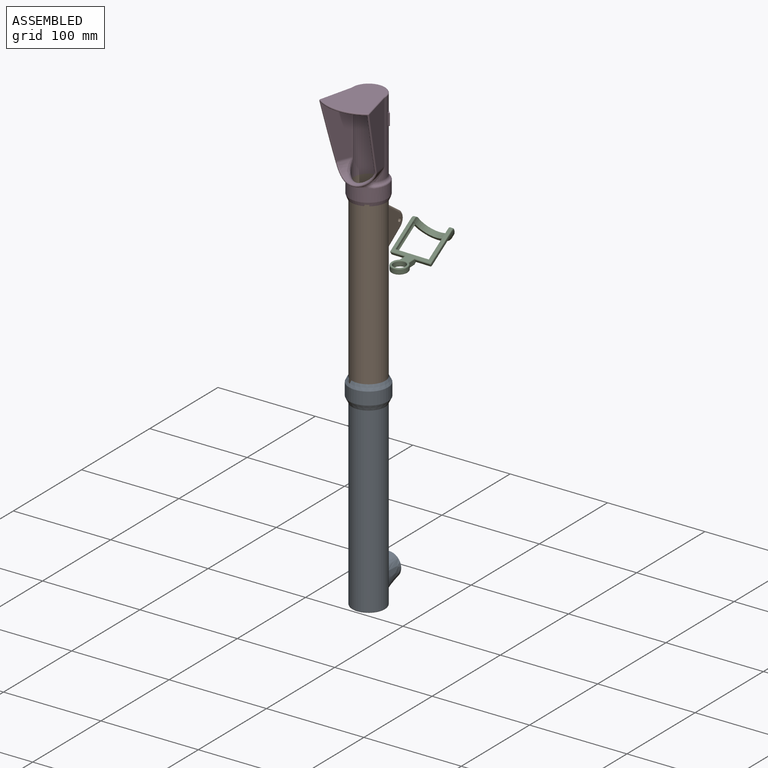
[diagram: assembled view]
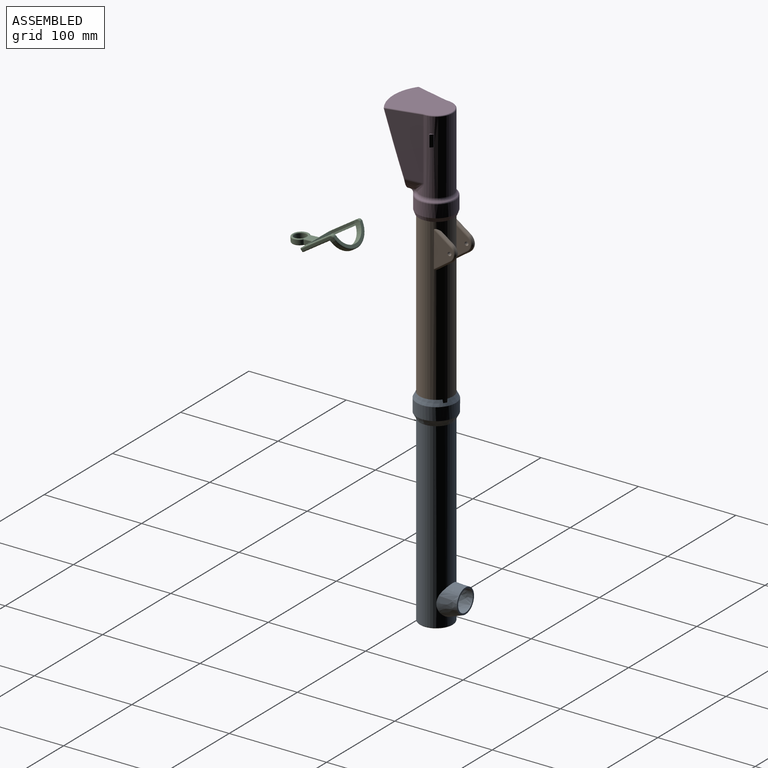
[diagram: assembled view, second angle]
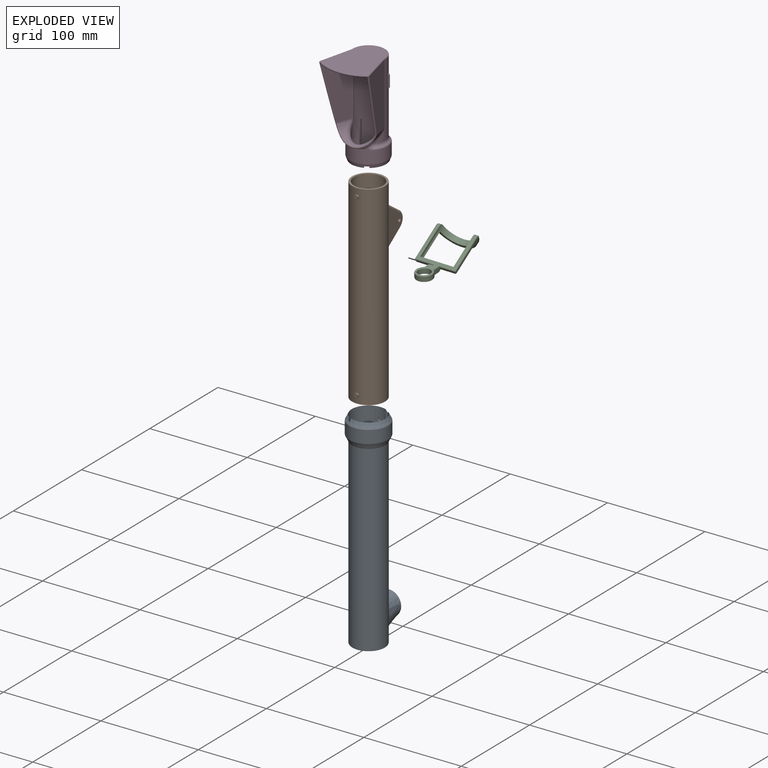
[diagram: exploded view]
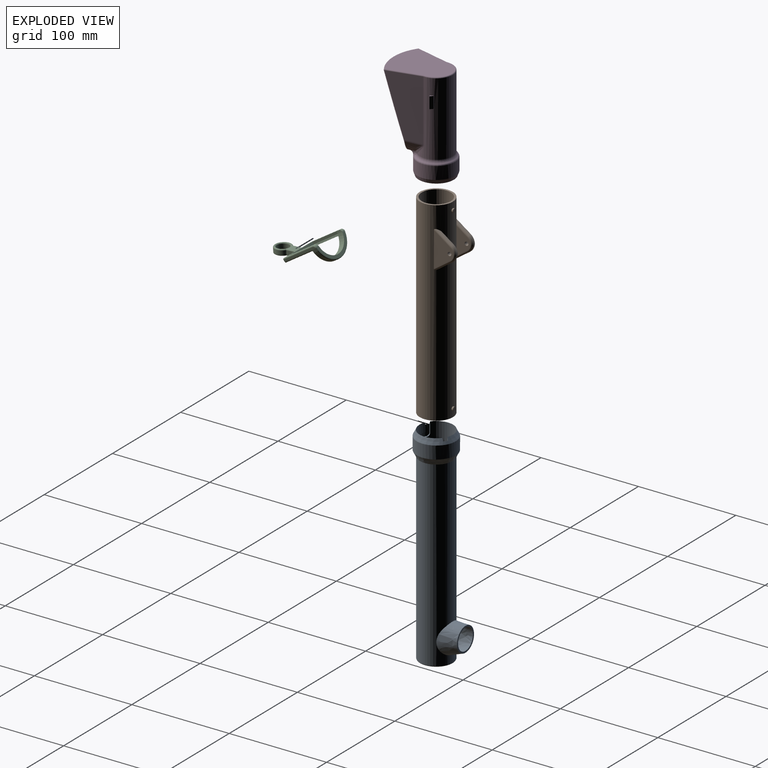
[diagram: exploded view, second angle]
ASSEMBLY  parts=4 mates=2
PART A: 40 faces, bbox 43.2x53.9x215.7 mm
  f0: cylinder r=17.25mm len=34.5mm, axis (0,0,-1), area 1921.5mm2, adj f2,f3,f5,f21,f22,f23,f27,f29
  f1: cylinder r=18.5mm len=7.23mm, axis (0,0,1), area 25.5mm2, adj f2,f21,f28,f32
  f2: plane 7.23x2.56mm, normal (0,0,-1), area 8.9mm2, adj f0,f1,f27,f32
  f3: plane 7.23x2.56mm, normal (0,0,-1), area 8.9mm2, adj f0,f4,f23,f29
  f4: cylinder r=18.5mm len=7.23mm, axis (0,0,1), area 25.5mm2, adj f3,f22,f25,f29
  f5: plane 34.5x34.5mm, normal (0,0,1), area 228mm2, adj f0,f17
  f6: cylinder r=17mm len=187mm, axis (0,0,-1), area 19322.3mm2, adj f8,f9,f10,f11,f37,f39
  f7: plane 32x32mm, normal (0,0,-1), area 650.3mm2, adj f18,f39
  f8: bspline ~30.75x29.36mm, area 493.4mm2, adj f6,f9,f11,f12
  f9: bspline ~30.51x20.88mm, area 330mm2, adj f6,f8,f10,f12
  f10: bspline ~30x29.27mm, area 469mm2, adj f6,f9,f11,f12
  f11: bspline ~30.52x22.39mm, area 329.5mm2, adj f6,f8,f10,f12
  f12: plane 25.53x25.5mm, normal (0,1,0), area 119.4mm2, adj f8,f9,f10,f11,f13,f14,f15,f16
  f13: offset ~33.95x32.43mm, area 380.3mm2, adj f12,f14,f16,f17
  f14: offset ~34.01x24.06mm, area 318.9mm2, adj f12,f13,f15,f17
  f15: offset ~33.8x32.67mm, area 365.5mm2, adj f12,f14,f16,f17
  f16: offset ~34.02x25.53mm, area 318.1mm2, adj f12,f13,f15,f17
  f17: cylinder r=15mm len=191mm, axis (0,0,-1), area 17587.7mm2, adj f5,f13,f14,f15,f16,f19
  f18: cylinder r=7mm len=14mm, axis (0,0,-1), area 88mm2, adj f7,f19
  f19: plane 30x30mm, normal (0,0,1), area 552.9mm2, adj f17,f18
  f20: cylinder r=20mm len=40mm, axis (0,0,1), area 1633.6mm2, adj f37,f38
  f21: plane 8.66x3.2mm, normal (0,0,1), area 11mm2, adj f0,f1,f27,f32,f33,f36
  f22: plane 8.66x3.2mm, normal (0,0,1), area 11mm2, adj f0,f4,f23,f29,f31,f35
  f23: cylinder r=2.25mm len=4.5mm, axis (0,-1,0), area 8.8mm2, adj f0,f3,f22,f24
  f24: plane 4.5x4.5mm, normal (0,1,0), area 15.9mm2, adj f23,f25
  f25: cylinder r=2.25mm len=4.5mm, axis (0,-1,0), area 0mm2, adj f4,f24
  f26: plane 4.5x4.5mm, normal (0,-1,0), area 15.9mm2, adj f27,f28
  f27: cylinder r=2.25mm len=4.5mm, axis (0,-1,0), area 8.8mm2, adj f0,f2,f21,f26
  f28: cylinder r=2.25mm len=4.5mm, axis (0,-1,0), area 0mm2, adj f1,f26
  f29: plane 13.76x1.22mm, normal (-0.87,0.5,0), area 11.6mm2, adj f0,f3,f4,f22,f31,f38
  f30: plane 10.76x1.22mm, normal (0.87,-0.5,0), area 13.1mm2, adj f0,f31,f35,f38
  f31: cylinder r=18.64mm len=10.98mm, axis (0,0,1), area 47.6mm2, adj f22,f29,f30,f35,f38
  f32: plane 13.76x1.22mm, normal (0.87,-0.5,0), area 11.6mm2, adj f0,f1,f2,f21,f33,f38
  f33: cylinder r=18.64mm len=10.98mm, axis (0,0,1), area 47.6mm2, adj f21,f32,f34,f36,f38
  f34: plane 10.76x1.22mm, normal (-0.87,0.5,0), area 13.1mm2, adj f0,f33,f36,f38
  f35: cylinder r=3mm len=3.36mm, axis (0.5,0.87,0), area 6.6mm2, adj f0,f22,f30,f31
  f36: cylinder r=3mm len=3.36mm, axis (0.5,0.87,0), area 6.6mm2, adj f0,f21,f33,f34
  f37: cone r=20mm half-angle=26.6deg, axis (0,0,1), area 779.8mm2, adj f6,f20
  f38: cone r=17mm half-angle=26.6deg, axis (0,0,-1), area 691.6mm2, adj f0,f20,f29,f30,f31,f32,f33,f34
  f39: torus R=16mm, axis (0,0,1), area 164.2mm2, adj f6,f7
PART B: 42 faces, bbox 34x49.3x200 mm
  f0: cylinder r=17mm len=200mm, axis (0,0,-1), area 20764.7mm2, adj f2,f3,f4,f5,f6,f7,f8,f9
  f1: cylinder r=15mm len=200mm, axis (0,0,-1), area 18849.6mm2, adj f2,f3
  f2: plane 34x34mm, normal (0,0,1), area 201.1mm2, adj f0,f1
  f3: plane 34x34mm, normal (0,0,-1), area 201.1mm2, adj f0,f1
  f4: plane 35.93x20mm, normal (1,0,0), area 421.9mm2, adj f0,f17,f30,f31,f32,f33
  f5: plane 14.8x10.37mm, normal (0,0.57,-0.82), area 17.4mm2, adj f0,f14,f21,f31
  f6: plane 14.8x10.37mm, normal (0,0.57,0.82), area 17.4mm2, adj f0,f15,f18,f30
  f7: plane 27.88x14.25mm, normal (-1,0,0), area 238.6mm2, adj f0,f17,f18,f19,f20,f21
  f8: plane 27.88x14.25mm, normal (1,0,0), area 238.6mm2, adj f0,f16,f22,f23,f24,f25
  f9: plane 14.8x10.37mm, normal (0,0.57,-0.82), area 17.4mm2, adj f0,f12,f23,f26
  f10: plane 14.8x10.37mm, normal (0,0.57,0.82), area 17.4mm2, adj f0,f13,f22,f27
  f11: plane 35.93x20mm, normal (-1,0,0), area 421.9mm2, adj f0,f16,f26,f27,f28,f29
  f12: cylinder r=10mm len=7.99mm, axis (1,0,0), area 9.4mm2, adj f9,f13,f25,f28
  f13: cylinder r=10mm len=7.99mm, axis (1,0,0), area 9.4mm2, adj f10,f12,f24,f29
  f14: cylinder r=10mm len=7.99mm, axis (1,0,0), area 9.4mm2, adj f5,f15,f20,f33
  f15: cylinder r=10mm len=7.99mm, axis (1,0,0), area 9.4mm2, adj f6,f14,f19,f32
  f16: cylinder r=1.9mm len=5mm, axis (1,0,0), area 59.6mm2, adj f8,f11
  f17: cylinder r=1.9mm len=5mm, axis (1,0,0), area 59.6mm2, adj f4,f7
  f18: cylinder r=2mm len=14.84mm, axis (0,-0.82,0.57), area 46.6mm2, adj f0,f6,f7,f19
  f19: torus R=8mm, axis (1,0,0), area 27.3mm2, adj f7,f15,f18,f20
  f20: torus R=8mm, axis (1,0,0), area 27.3mm2, adj f7,f14,f19,f21
  f21: cylinder r=2mm len=14.84mm, axis (0,-0.82,-0.57), area 46.6mm2, adj f0,f5,f7,f20
  f22: cylinder r=2mm len=14.84mm, axis (0,0.82,-0.57), area 46.6mm2, adj f0,f8,f10,f24
  f23: cylinder r=2mm len=14.84mm, axis (0,0.82,0.57), area 46.6mm2, adj f0,f8,f9,f25
  f24: torus R=8mm, axis (1,0,0), area 27.3mm2, adj f8,f13,f22,f25
  f25: torus R=8mm, axis (1,0,0), area 27.3mm2, adj f8,f12,f23,f24
  f26: cylinder r=2mm len=17.91mm, axis (0,-0.82,-0.57), area 61.9mm2, adj f0,f9,f11,f28
  f27: cylinder r=2mm len=17.91mm, axis (0,-0.82,0.57), area 61.9mm2, adj f0,f10,f11,f29
  f28: torus R=8mm, axis (1,0,0), area 27.3mm2, adj f11,f12,f26,f29
  f29: torus R=8mm, axis (1,0,0), area 27.3mm2, adj f11,f13,f27,f28
  f30: cylinder r=2mm len=17.91mm, axis (0,0.82,-0.57), area 61.9mm2, adj f0,f4,f6,f32
  f31: cylinder r=2mm len=17.91mm, axis (0,0.82,0.57), area 61.9mm2, adj f0,f4,f5,f33
  f32: torus R=8mm, axis (1,0,0), area 27.3mm2, adj f4,f15,f30,f33
  f33: torus R=8mm, axis (1,0,0), area 27.3mm2, adj f4,f14,f31,f32
  f34: cylinder r=2mm len=4mm, axis (0,1,0), area 19.6mm2, adj f0,f35
  f35: plane 4x4mm, normal (0,-1,0), area 12.6mm2, adj f34
  f36: cylinder r=2mm len=4mm, axis (0,1,0), area 19.6mm2, adj f0,f37
  f37: plane 4x4mm, normal (0,-1,0), area 12.6mm2, adj f36
  f38: cylinder r=2mm len=4mm, axis (0,-1,0), area 19.6mm2, adj f0,f39
  f39: plane 4x4mm, normal (0,1,0), area 12.6mm2, adj f38
  f40: cylinder r=2mm len=4mm, axis (0,-1,0), area 19.6mm2, adj f0,f41
  f41: plane 4x4mm, normal (0,1,0), area 12.6mm2, adj f40
PART C: 49 faces, bbox 45.3x37.5x69.4 mm
  f0: cylinder r=21.25mm len=42.76mm, axis (0,0.5,-0.87), area 414.8mm2, adj f19,f20,f23,f24,f26,f27,f29,f30
  f1: plane 15.2x1.95mm, normal (0,-0.5,0.87), area 33.9mm2, adj f11,f29,f34,f41
  f2: plane 39.81x31.81mm, normal (0,-0.87,-0.5), area 345.8mm2, adj f5,f8,f16,f17,f18,f22,f24,f25
  f3: plane 40.39x31.18mm, normal (0,0.87,0.5), area 307.1mm2, adj f5,f6,f7,f8,f9,f15,f20,f26
  f4: plane 15.2x1.95mm, normal (0,-0.5,0.87), area 33.9mm2, adj f13,f19,f22,f43
  f5: plane 34.5x3.68mm, normal (0,0.5,-0.87), area 145.5mm2, adj f2,f3,f6,f7,f17,f18
  f6: plane 27.23x17.17mm, normal (-1,0,0), area 75mm2, adj f3,f5,f8,f18
  f7: plane 27.23x17.17mm, normal (1,0,0), area 75mm2, adj f3,f5,f8,f17
  f8: plane 39.38x17.13mm, normal (0,-0.5,0.87), area 149mm2, adj f2,f3,f6,f7,f9,f17,f18,f27
  f9: cylinder r=17.25mm len=34.49mm, axis (0,0.5,-0.87), area 315.6mm2, adj f3,f8,f10,f45,f47
  f10: plane 39.9x14.53mm, normal (0,0.5,-0.87), area 155.8mm2, adj f9,f23,f45,f47
  f11: plane 9.48x4mm, normal (1,0,0), area 34.5mm2, adj f1,f12,f33,f35,f38,f41
  f12: cylinder r=8.5mm len=17mm, axis (0,-1,0), area 170.9mm2, adj f11,f13,f31,f39
  f13: plane 9.48x4mm, normal (-1,0,0), area 34.5mm2, adj f4,f12,f25,f28,f40,f43
  f14: cylinder r=6.25mm len=12.5mm, axis (0,-1,0), area 157.1mm2, adj f36,f37
  f15: plane 23.9x15mm, normal (0,1,0), area 85.8mm2, adj f3,f37,f38,f39,f40
  f16: plane 22.01x15mm, normal (0,-1,0), area 70.6mm2, adj f2,f28,f31,f33,f36
  f17: plane 26.86x16.52mm, normal (0.94,0.29,0.17), area 55.7mm2, adj f2,f5,f7,f8
  f18: plane 26.86x16.52mm, normal (-0.94,0.29,0.17), area 55.7mm2, adj f2,f5,f6,f8
  f19: torus R=20.25mm, axis (0,-0.5,0.87), area 3.7mm2, adj f0,f4,f21,f44
  f20: cylinder r=1mm len=31.71mm, axis (0,0.5,-0.87), area 59.2mm2, adj f0,f3,f44,f48
  f21: sphere r=1mm, area 1.4mm2, adj f19,f22,f24
  f22: cylinder r=1mm len=15.91mm, axis (1,0,0), area 24mm2, adj f2,f4,f21,f25
  f23: torus R=20.25mm, axis (0,0.5,-0.87), area 91.8mm2, adj f0,f10,f46,f48
  f24: cylinder r=1mm len=29.85mm, axis (0,0.5,-0.87), area 46.3mm2, adj f0,f2,f21,f27
  f25: cylinder r=1mm len=3.71mm, axis (0,0.5,-0.87), area 4.7mm2, adj f2,f13,f22,f28
  f26: cylinder r=1mm len=31.71mm, axis (0,0.5,-0.87), area 59.2mm2, adj f0,f3,f42,f46
  f27: torus R=20.25mm, axis (0,0.5,-0.87), area 88.9mm2, adj f0,f2,f8,f24,f30
  f28: cylinder r=1mm len=8.16mm, axis (0,0,-1), area 12.1mm2, adj f13,f16,f25,f31
  f29: torus R=20.25mm, axis (0,-0.5,0.87), area 3.7mm2, adj f0,f1,f32,f42
  f30: cylinder r=1mm len=29.85mm, axis (0,0.5,-0.87), area 46.3mm2, adj f0,f2,f27,f32
  f31: torus R=7.5mm, axis (0,-1,0), area 64.8mm2, adj f12,f16,f28,f33
  f32: sphere r=1mm, area 1.4mm2, adj f29,f30,f34
  f33: cylinder r=1mm len=8.16mm, axis (0,0,1), area 12.1mm2, adj f11,f16,f31,f35
  f34: cylinder r=1mm len=15.91mm, axis (1,0,0), area 24mm2, adj f1,f2,f32,f35
  f35: cylinder r=1mm len=3.71mm, axis (0,0.5,-0.87), area 4.7mm2, adj f2,f11,f33,f34
  f36: torus R=7.25mm, axis (0,-1,0), area 65.3mm2, adj f14,f16
  f37: torus R=7.25mm, axis (0,-1,0), area 65.3mm2, adj f14,f15
  f38: cylinder r=1mm len=10.06mm, axis (0,0,-1), area 14.4mm2, adj f3,f11,f15,f39,f41
  f39: torus R=7.5mm, axis (0,-1,0), area 64.8mm2, adj f12,f15,f38,f40
  f40: cylinder r=1mm len=10.06mm, axis (0,0,1), area 14.4mm2, adj f3,f13,f15,f39,f43
  f41: cylinder r=1mm len=15.35mm, axis (-1,0,0), area 23.9mm2, adj f1,f3,f11,f38,f42
  f42: sphere r=1mm, area 1.6mm2, adj f26,f29,f41
  f43: cylinder r=1mm len=15.35mm, axis (-1,0,0), area 23.9mm2, adj f3,f4,f13,f40,f44
  f44: sphere r=1mm, area 1.6mm2, adj f19,f20,f43
  f45: cylinder r=3mm len=4.1mm, axis (-1,0,0), area 14mm2, adj f3,f9,f10,f46
  f46: bspline ~4.95x2.59mm, area 6.9mm2, adj f0,f23,f26,f45
  f47: cylinder r=3mm len=4.1mm, axis (-1,0,0), area 14mm2, adj f3,f9,f10,f48
  f48: bspline ~4.89x2.46mm, area 6.9mm2, adj f0,f20,f23,f47
PART D: 99 faces, bbox 63.4x76.7x106.3 mm
  f0: cylinder r=15mm len=81mm, axis (0,0,-1), area 4411.1mm2, adj f1,f91,f92,f93,f94,f95,f96,f97
  f1: plane 34x34mm, normal (0,0,-1), area 201.1mm2, adj f0,f2
  f2: cylinder r=17mm len=34mm, axis (0,0,-1), area 1452mm2, adj f1,f3,f72,f76,f77,f78,f79,f80
  f3: cylinder r=3mm len=3.48mm, axis (-0.5,0.87,0), area 7.7mm2, adj f2,f4,f72,f90
  f4: cylinder r=18.64mm len=7.55mm, axis (0,0,-1), area 32.1mm2, adj f3,f5,f72,f78,f90
  f5: cone r=19.5mm half-angle=20.6deg, axis (0,0,1), area 486.9mm2, adj f4,f6,f7,f78,f79,f80,f88,f89
  f6: cylinder r=18.64mm len=7.55mm, axis (0,0,-1), area 32.1mm2, adj f5,f80,f81,f82,f88
  f7: cylinder r=19.5mm len=39mm, axis (0,0,-1), area 1604.7mm2, adj f5,f8,f67,f68,f69,f70,f71
  f8: bspline ~3.29x2.6mm, area 4.9mm2, adj f7,f9,f67,f71
  f9: bspline ~7.86x6.55mm, area 19.8mm2, adj f8,f10,f65,f66
  f10: torus R=21mm, axis (0,0,-1), area 295.7mm2, adj f9,f11,f52,f71
  f11: bspline ~7.84x6.54mm, area 19.8mm2, adj f10,f12,f65,f70
  f12: bspline ~14.6x13.25mm, area 55.2mm2, adj f11,f13,f51,f52
  f13: bspline ~50x25.41mm, area 94.4mm2, adj f12,f14,f50,f65
  f14: bspline ~41.64x15.09mm, area 66mm2, adj f13,f15,f44,f45,f46,f47,f48,f49
  f15: cone r=22mm half-angle=14.6deg, axis (0,0,1), area 0.1mm2, adj f14,f16,f43,f44
  f16: bspline ~4.11x2.55mm, area 4.5mm2, adj f15,f17,f42,f49
  f17: bspline ~26.99x7.09mm, area 29.5mm2, adj f16,f18,f40,f41
  f18: offset ~63.42x54mm, area 147.1mm2, adj f17,f19,f49,f91
  f19: bspline ~26.99x7.09mm, area 29.5mm2, adj f18,f20,f38,f39
  f20: plane 61.53x32.95mm, normal (0.97,-0.24,0), area 1531.6mm2, adj f19,f21,f39,f95,f96
  f21: bspline ~73.08x21.92mm, area 126.7mm2, adj f20,f22,f37,f38,f95
  f22: bspline ~72.71x21.66mm, area 72.1mm2, adj f21,f23,f36,f47,f48
  f23: plane 62.85x33.78mm, normal (-0.97,0.24,0), area 1608.3mm2, adj f22,f24,f34,f35
  f24: cylinder r=5mm len=62.84mm, axis (0,0,-1), area 81.2mm2, adj f23,f25,f33,f52
  f25: torus R=6mm, axis (0,0,1), area 2.2mm2, adj f24,f26,f32,f34
  f26: plane 59.19x48.89mm, normal (0,0,1), area 2084.2mm2, adj f25,f27,f31,f32,f34,f37
  f27: cylinder r=1mm len=34.01mm, axis (-0.24,0.97,0), area 54.6mm2, adj f26,f28,f30,f31
  f28: plane 62.85x33.78mm, normal (0.97,0.24,0), area 1608.3mm2, adj f27,f29,f43,f50
  f29: cylinder r=5mm len=62.84mm, axis (0,0,-1), area 81.2mm2, adj f28,f31,f51,f52
  f30: sphere r=1mm, area 1.4mm2, adj f27,f37,f43
  f31: torus R=6mm, axis (0,0,1), area 2.2mm2, adj f26,f27,f29,f32
  f32: torus R=16mm, axis (0,0,1), area 83.1mm2, adj f25,f26,f31,f52
  f33: bspline ~4.53x4.18mm, area 6.9mm2, adj f24,f35,f52,f66
  f34: cylinder r=1mm len=34.01mm, axis (-0.24,-0.97,0), area 54.6mm2, adj f23,f25,f26,f36
  f35: bspline ~26.21x6.82mm, area 30.1mm2, adj f23,f33,f46,f47
  f36: sphere r=1mm, area 1.4mm2, adj f22,f34,f37
  f37: torus R=43.19mm, axis (0,0,1), area 164.5mm2, adj f21,f26,f30,f36,f42,f95
  f38: bspline ~4.64x2.58mm, area 4.5mm2, adj f19,f21,f48,f49
  f39: bspline ~3.44x2.22mm, area 3.6mm2, adj f19,f20,f91,f97
  f40: plane 61.54x32.95mm, normal (-0.97,-0.24,0), area 1531.6mm2, adj f17,f41,f42,f94,f95
  f41: bspline ~4.19x2.58mm, area 3.6mm2, adj f17,f40,f91,f93
  f42: bspline ~73.08x21.92mm, area 126.7mm2, adj f16,f37,f40,f43,f95
  f43: bspline ~72.71x21.66mm, area 72.1mm2, adj f15,f28,f30,f42,f44
  f44: bspline ~2.71x1.1mm, area 1.6mm2, adj f14,f15,f43,f50
  f45: bspline ~50x41.79mm, area 102mm2, adj f14,f65
  f46: bspline ~50x25.41mm, area 94.4mm2, adj f14,f35,f65,f66
  f47: bspline ~3.69x1.41mm, area 1.6mm2, adj f14,f22,f35,f48
  f48: cone r=22mm half-angle=14.6deg, axis (0,0,1), area 0.1mm2, adj f14,f22,f38,f47
  f49: bspline ~41.47x15.31mm, area 100.6mm2, adj f14,f16,f18,f38
  f50: bspline ~26.21x6.82mm, area 30.1mm2, adj f13,f28,f44,f51
  f51: bspline ~4.6x4.23mm, area 6.9mm2, adj f12,f29,f50,f52
  f52: cylinder r=17mm len=75.29mm, axis (0,0,-1), area 4108mm2, adj f10,f12,f24,f29,f32,f33,f51,f53
  f53: plane 3x3mm, normal (0,0,-1), area 3.8mm2, adj f52,f54,f55,f56,f58
  f54: plane 12x0.5mm, normal (1,0,0), area 6mm2, adj f53,f55,f57,f58
  f55: plane 12x2.5mm, normal (0.71,0.71,0), area 42.4mm2, adj f53,f54,f56,f57
  f56: plane 12x0.5mm, normal (0,1,0), area 6mm2, adj f52,f53,f55,f57
  f57: plane 3x3mm, normal (0,0,1), area 3.8mm2, adj f52,f54,f55,f56,f58
  f58: plane 12x1.75mm, normal (0,-1,0), area 21mm2, adj f52,f53,f54,f57
  f59: plane 3x3mm, normal (0,0,1), area 3.8mm2, adj f52,f60,f61,f62,f64
  f60: plane 12x0.5mm, normal (-1,0,0), area 6mm2, adj f59,f61,f63,f64
  f61: plane 12x2.5mm, normal (-0.71,0.71,0), area 42.4mm2, adj f59,f60,f62,f63
  f62: plane 12x0.5mm, normal (0,1,0), area 6mm2, adj f52,f59,f61,f63
  f63: plane 3x3mm, normal (0,0,-1), area 3.8mm2, adj f52,f60,f61,f62,f64
  f64: plane 12x1.75mm, normal (0,-1,0), area 21mm2, adj f52,f59,f60,f63
  f65: bspline ~29.11x9.7mm, area 135.3mm2, adj f9,f11,f13,f45,f46,f67,f68,f69
  f66: bspline ~14.22x12.94mm, area 55.2mm2, adj f9,f33,f46,f52
  f67: bspline ~3.71x3.53mm, area 2.4mm2, adj f7,f8,f65
  f68: bspline ~19.91x4.14mm, area 0mm2, adj f7,f65
  f69: bspline ~4.02x3.79mm, area 2.4mm2, adj f7,f65,f70
  f70: bspline ~3.03x2.39mm, area 4.9mm2, adj f7,f11,f69,f71
  f71: torus R=17.5mm, axis (0,0,-1), area 161.6mm2, adj f7,f8,f10,f70
  f72: plane 8.66x3.42mm, normal (0,0,-1), area 13mm2, adj f2,f3,f4,f73,f76,f78
  f73: cylinder r=18.5mm len=7.23mm, axis (0,0,-1), area 25.5mm2, adj f72,f74,f77,f78
  f74: cylinder r=2.25mm len=4.5mm, axis (0,-1,0), area 0mm2, adj f73,f75
  f75: plane 4.5x4.5mm, normal (0,-1,0), area 15.9mm2, adj f74,f76
  f76: cylinder r=2.25mm len=4.5mm, axis (0,-1,0), area 10.6mm2, adj f2,f72,f75,f77
  f77: plane 7.23x2.78mm, normal (0,0,1), area 10.6mm2, adj f2,f73,f76,f78
  f78: plane 9.25x1.43mm, normal (-0.87,-0.5,0), area 7.9mm2, adj f2,f4,f5,f72,f73,f77,f79
  f79: plane 32.34x24.98mm, normal (0,0,-1), area 50.5mm2, adj f2,f5,f78,f80
  f80: plane 6.25x1.43mm, normal (-0.87,-0.5,0), area 9.8mm2, adj f2,f5,f6,f79,f81
  f81: cylinder r=3mm len=3.48mm, axis (-0.5,0.87,0), area 7.7mm2, adj f2,f6,f80,f82
  f82: plane 8.66x3.42mm, normal (0,0,-1), area 13mm2, adj f2,f6,f81,f83,f86,f88
  f83: cylinder r=18.5mm len=7.23mm, axis (0,0,-1), area 25.5mm2, adj f82,f84,f87,f88
  f84: cylinder r=2.25mm len=4.5mm, axis (0,-1,0), area 0mm2, adj f83,f85
  f85: plane 4.5x4.5mm, normal (0,1,0), area 15.9mm2, adj f84,f86
  f86: cylinder r=2.25mm len=4.5mm, axis (0,-1,0), area 10.6mm2, adj f2,f82,f85,f87
  f87: plane 7.23x2.78mm, normal (0,0,1), area 10.6mm2, adj f2,f83,f86,f88
  f88: plane 9.25x1.43mm, normal (0.87,0.5,0), area 7.9mm2, adj f2,f5,f6,f82,f83,f87,f89
  f89: plane 32.34x24.98mm, normal (0,0,-1), area 50.5mm2, adj f2,f5,f88,f90
  f90: plane 6.25x1.43mm, normal (0.87,0.5,0), area 9.8mm2, adj f2,f3,f4,f5,f89
  f91: bspline ~30.81x19.75mm, area 349.9mm2, adj f0,f18,f39,f41,f92,f98
  f92: bspline ~3.05x0.74mm, area 0.5mm2, adj f0,f91,f93
  f93: bspline ~2.24x0.65mm, area 1.2mm2, adj f0,f41,f92,f94
  f94: cylinder r=1mm len=61.53mm, axis (0,0,-1), area 49.4mm2, adj f0,f40,f93,f95
  f95: plane 58.22x47.45mm, normal (0,0,-1), area 1961.3mm2, adj f0,f20,f21,f37,f40,f42,f94,f96
  f96: cylinder r=1mm len=61.53mm, axis (0,0,-1), area 49.4mm2, adj f0,f20,f95,f97
  f97: bspline ~2.44x0.65mm, area 1.2mm2, adj f0,f39,f96,f98
  f98: bspline ~3.05x0.74mm, area 0.5mm2, adj f0,f91,f97
PLACE A t=(-13.79,147.98,-40.79)mm
PLACE B rot(axis=(0,1,0),180deg) t=(-63.79,197.98,352.21)mm
PLACE C rot(axis=(1,-0.01,-0.01),93.5deg) t=(23.89,160.77,335.22)mm
PLACE D t=(-63.79,197.98,352.21)mm
MATE fastened B.f0 <-> A.f0  axis (0,0,-1) through (-63.79,197.98,152.21)mm
MATE fastened B.f0 <-> D.f0  axis (0,0,1) through (-63.79,197.98,352.21)mm
